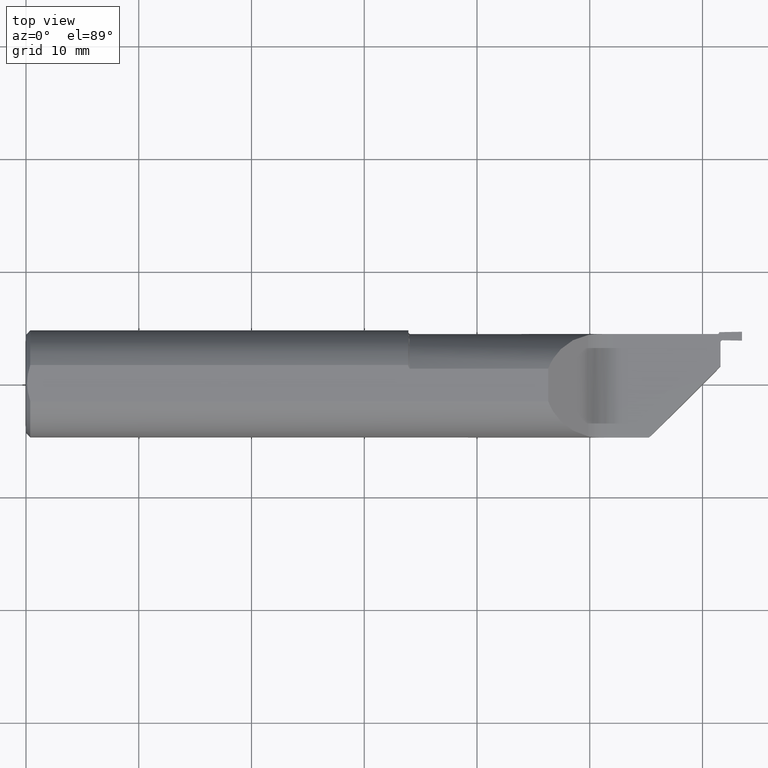
[diagram: clean part render]
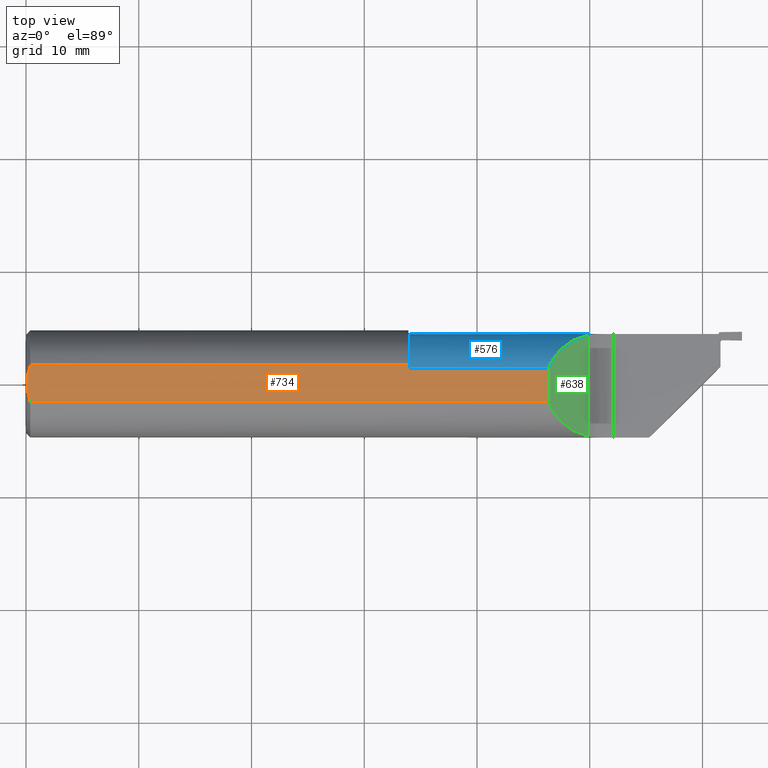
[diagram: same view with three faces highlighted in distinct colors, each labeled with its STEP entity id]
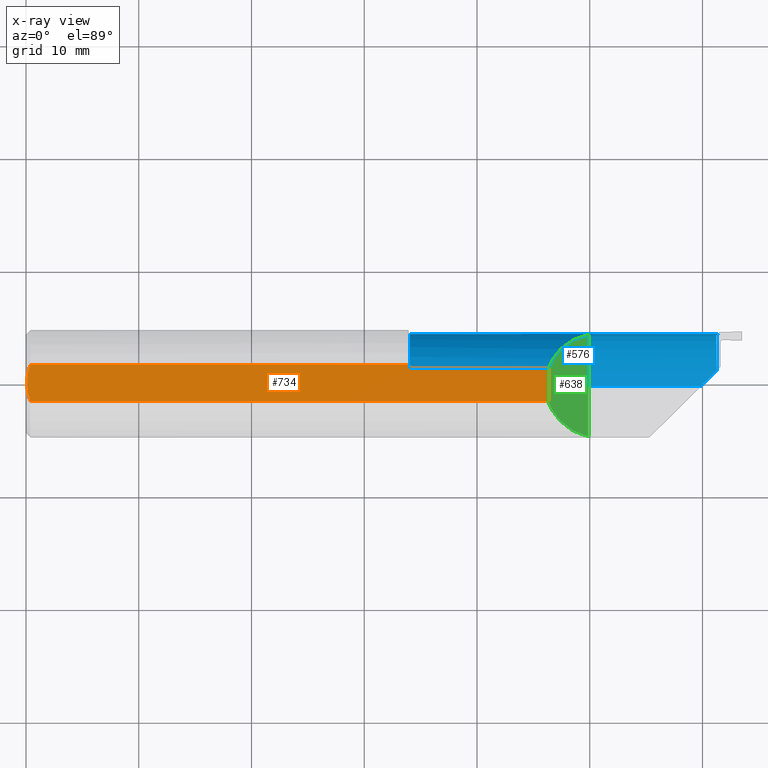
[diagram: x-ray of the same camera — body ghosted, the three highlighted faces saturated]
A machine part, top view with three faces highlighted in distinct colors.
The next image is the same camera in x-ray (body ghosted, the three faces saturated) — at least one of them is partly hidden behind the body in this view.
Their STEP definitions:

[orange] entity #734 — the highlighted planar face has unit normal (0, 0, -1).
#10 = ORIENTED_EDGE ( 'NONE', *, *, #573, .F. ) ;
#17 = CARTESIAN_POINT ( 'NONE',  ( 1.335009689054889037, 0.06325108694718309388, 0.1763499999999996737 ) ) ;
#36 = B_SPLINE_CURVE_WITH_KNOTS ( 'NONE', 3,
 ( #366, #651, #506, #864, #584, #303 ),
 .UNSPECIFIED., .F., .F.,
 ( 4, 2, 4 ),
 ( 0.005686795504019448270, 0.006495656790038640237, 0.007304518076057832203 ),
 .UNSPECIFIED. ) ;
#39 = VERTEX_POINT ( 'NONE', #486 ) ;
#59 = CARTESIAN_POINT ( 'NONE',  ( 1.336331159115146772, 0.05501236657328722329, 0.1763500000000000068 ) ) ;
#99 = VECTOR ( 'NONE', #434, 39.37007874015748143 ) ;
#103 = EDGE_LOOP ( 'NONE', ( #10, #384, #154, #801, #232, #850, #625 ) ) ;
#107 = VECTOR ( 'NONE', #718, 39.37007874015748143 ) ;
#115 = PLANE ( 'NONE',  #586 ) ;
#121 = VERTEX_POINT ( 'NONE', #254 ) ;
#154 = ORIENTED_EDGE ( 'NONE', *, *, #645, .F. ) ;
#173 = DIRECTION ( 'NONE',  ( -1.000000000000000000, -0.000000000000000000, -0.000000000000000000 ) ) ;
#175 = CARTESIAN_POINT ( 'NONE',  ( 1.339391378728019832, 0.05054325299224062679, 0.1763499999999999512 ) ) ;
#188 = CARTESIAN_POINT ( 'NONE',  ( 1.337621628564846787, 0.05225604298120335722, 0.1763500000000000068 ) ) ;
#219 = CARTESIAN_POINT ( 'NONE',  ( 0.9958286716179119979, 0.05054325299224011331, 0.1763499999999999790 ) ) ;
#220 = LINE ( 'NONE', #507, #99 ) ;
#232 = ORIENTED_EDGE ( 'NONE', *, *, #631, .T. ) ;
#233 = CARTESIAN_POINT ( 'NONE',  ( 0.01499999999999954321, -0.06325108694718213631, 0.1763499999999999790 ) ) ;
#247 = B_SPLINE_CURVE_WITH_KNOTS ( 'NONE', 3,
 ( #541, #386, #804, #524, #810, #814 ),
 .UNSPECIFIED., .F., .F.,
 ( 4, 2, 4 ),
 ( 0.004067309716740378708, 0.004877052610379913056, 0.005686795504019448270 ),
 .UNSPECIFIED. ) ;
#254 = CARTESIAN_POINT ( 'NONE',  ( 1.823649999999999771, -0.06325108694718213631, 0.1763499999999999790 ) ) ;
#295 = VERTEX_POINT ( 'NONE', #350 ) ;
#303 = CARTESIAN_POINT ( 'NONE',  ( 0.01499999999999954321, -0.06325108694718213631, 0.1763499999999999790 ) ) ;
#307 = CARTESIAN_POINT ( 'NONE',  ( 0.000000000000000000, -0.06325108694718213631, 0.1763499999999999790 ) ) ;
#319 = CARTESIAN_POINT ( 'NONE',  ( 1.335069243236268077, 0.06084819611239657144, 0.1763499999999999790 ) ) ;
#321 = DIRECTION ( 'NONE',  ( -1.000000000000000000, 0.000000000000000000, -0.000000000000000000 ) ) ;
#328 = CARTESIAN_POINT ( 'NONE',  ( 1.337958805214830571, 0.05174923270990745144, 0.1763499999999999235 ) ) ;
#350 = CARTESIAN_POINT ( 'NONE',  ( 0.003999999999999476197, 2.550090563692220756E-17, 0.1763499999999999790 ) ) ;
#366 = CARTESIAN_POINT ( 'NONE',  ( 0.003999999999999476197, 2.550090563692220756E-17, 0.1763499999999999790 ) ) ;
#367 = VERTEX_POINT ( 'NONE', #783 ) ;
#379 = CARTESIAN_POINT ( 'NONE',  ( 1.823649999999999771, 0.05054325299224022433, 0.1763499999999999790 ) ) ;
#384 = ORIENTED_EDGE ( 'NONE', *, *, #795, .F. ) ;
#386 = CARTESIAN_POINT ( 'NONE',  ( 0.01155164730757254551, 0.05303705098182932148, 0.1763499999999999512 ) ) ;
#434 = DIRECTION ( 'NONE',  ( -0.000000000000000000, 1.000000000000000000, 0.000000000000000000 ) ) ;
#439 = EDGE_CURVE ( 'NONE', #121, #585, #220, .T. ) ;
#453 = VECTOR ( 'NONE', #518, 39.37007874015748143 ) ;
#486 = CARTESIAN_POINT ( 'NONE',  ( 0.01499999999999953280, 0.06325108694718213631, 0.1763499999999999790 ) ) ;
#506 = CARTESIAN_POINT ( 'NONE',  ( 0.004994273251992765658, -0.02144446570098899538, 0.1763499999999999790 ) ) ;
#507 = CARTESIAN_POINT ( 'NONE',  ( 1.823649999999999771, 0.06325108694718213631, 0.1763499999999999790 ) ) ;
#518 = DIRECTION ( 'NONE',  ( 1.000000000000000000, 0.000000000000000000, 0.000000000000000000 ) ) ;
#524 = CARTESIAN_POINT ( 'NONE',  ( 0.005015444644058540853, 0.02160243875479328501, 0.1763499999999999790 ) ) ;
#527 = CARTESIAN_POINT ( 'NONE',  ( 1.336737058446424209, 0.05385394031618935540, 0.1763500000000000068 ) ) ;
#536 = CARTESIAN_POINT ( 'NONE',  ( 1.335371528663762408, 0.05848268389675807810, 0.1763499999999999790 ) ) ;
#541 = CARTESIAN_POINT ( 'NONE',  ( 0.01499999999999953280, 0.06325108694718213631, 0.1763499999999999790 ) ) ;
#542 = VECTOR ( 'NONE', #173, 39.37007874015748143 ) ;
#563 = VERTEX_POINT ( 'NONE', #17 ) ;
#573 = EDGE_CURVE ( 'NONE', #367, #585, #856, .T. ) ;
#584 = CARTESIAN_POINT ( 'NONE',  ( 0.01157250466904289656, -0.05309883057899357495, 0.1763500000000000068 ) ) ;
#585 = VERTEX_POINT ( 'NONE', #379 ) ;
#586 = AXIS2_PLACEMENT_3D ( 'NONE', #870, #881, #321 ) ;
#599 = CARTESIAN_POINT ( 'NONE',  ( 1.340000000000000080, 0.05054325299224017576, 0.1763500000000000068 ) ) ;
#625 = ORIENTED_EDGE ( 'NONE', *, *, #439, .T. ) ;
#631 = EDGE_CURVE ( 'NONE', #295, #871, #36, .T. ) ;
#645 = EDGE_CURVE ( 'NONE', #39, #563, #659, .T. ) ;
#651 = CARTESIAN_POINT ( 'NONE',  ( 0.003999999999999438033, -0.01077599264701408627, 0.1763499999999999512 ) ) ;
#659 = LINE ( 'NONE', #867, #453 ) ;
#665 = EDGE_CURVE ( 'NONE', #121, #871, #785, .T. ) ;
#667 = B_SPLINE_CURVE_WITH_KNOTS ( 'NONE', 3,
 ( #747, #319, #536, #59, #527, #188, #328, #672, #175, #599 ),
 .UNSPECIFIED., .F., .F.,
 ( 4, 2, 2, 2, 4 ),
 ( 0.001068967629214199935, 0.001252800944429019675, 0.001344717602036429437, 0.001390675930840129656, 0.001436634259643829875 ),
 .UNSPECIFIED. ) ;
#672 = CARTESIAN_POINT ( 'NONE',  ( 1.338826947156392722, 0.05089100678216058188, 0.1763500000000000068 ) ) ;
#678 = FACE_OUTER_BOUND ( 'NONE', #103, .T. ) ;
#718 = DIRECTION ( 'NONE',  ( 1.000000000000000000, 0.000000000000000000, 0.000000000000000000 ) ) ;
#734 = ADVANCED_FACE ( 'NONE', ( #678 ), #115, .F. ) ;
#747 = CARTESIAN_POINT ( 'NONE',  ( 1.335009689054889037, 0.06325108694718309388, 0.1763499999999996737 ) ) ;
#783 = CARTESIAN_POINT ( 'NONE',  ( 1.340000000000000080, 0.05054325299224017576, 0.1763500000000000068 ) ) ;
#785 = LINE ( 'NONE', #307, #542 ) ;
#788 = EDGE_CURVE ( 'NONE', #39, #295, #247, .T. ) ;
#795 = EDGE_CURVE ( 'NONE', #563, #367, #667, .T. ) ;
#801 = ORIENTED_EDGE ( 'NONE', *, *, #788, .T. ) ;
#804 = CARTESIAN_POINT ( 'NONE',  ( 0.008794551420594692165, 0.04267918597792702551, 0.1763499999999999790 ) ) ;
#810 = CARTESIAN_POINT ( 'NONE',  ( 0.003999999999999442370, 0.01078773779713888652, 0.1763500000000000068 ) ) ;
#814 = CARTESIAN_POINT ( 'NONE',  ( 0.003999999999999476197, 2.550090563692220756E-17, 0.1763499999999999790 ) ) ;
#850 = ORIENTED_EDGE ( 'NONE', *, *, #665, .F. ) ;
#856 = LINE ( 'NONE', #219, #107 ) ;
#864 = CARTESIAN_POINT ( 'NONE',  ( 0.008771136374093824184, -0.04258802525788810134, 0.1763499999999999790 ) ) ;
#867 = CARTESIAN_POINT ( 'NONE',  ( 0.000000000000000000, 0.06325108694718213631, 0.1763499999999999790 ) ) ;
#870 = CARTESIAN_POINT ( 'NONE',  ( 0.000000000000000000, -0.2873500000000001053, 0.1763499999999999790 ) ) ;
#871 = VERTEX_POINT ( 'NONE', #233 ) ;
#881 = DIRECTION ( 'NONE',  ( 0.000000000000000000, 0.000000000000000000, -1.000000000000000000 ) ) ;

[blue] entity #576 — the highlighted cylindrical surface (partial cylindrical patch) has radius 4.7625 mm, axis along (-1, -0, -0).
#11 = DIRECTION ( 'NONE',  ( -1.000000000000000000, -0.000000000000000000, -0.000000000000000000 ) ) ;
#12 = CARTESIAN_POINT ( 'NONE',  ( 2.043518208465806119, 0.1743492383597801676, 2.004200005117457956E-17 ) ) ;
#31 = CARTESIAN_POINT ( 'NONE',  ( 2.415000000000000480, -0.01315076164021992781, 0.000000000000000000 ) ) ;
#35 = DIRECTION ( 'NONE',  ( 0.000000000000000000, 0.000000000000000000, 1.000000000000000000 ) ) ;
#37 = AXIS2_PLACEMENT_3D ( 'NONE', #582, #794, #35 ) ;
#72 = CARTESIAN_POINT ( 'NONE',  ( 2.414115114763263126, 0.1718910382361288347, -0.03026445539806299143 ) ) ;
#75 = CARTESIAN_POINT ( 'NONE',  ( 2.410321013188299943, 0.1681737486601247444, -0.04788361220678832159 ) ) ;
#79 = VERTEX_POINT ( 'NONE', #399 ) ;
#80 = AXIS2_PLACEMENT_3D ( 'NONE', #31, #231, #578 ) ;
#81 = CARTESIAN_POINT ( 'NONE',  ( 2.376537322261709662, 0.01418732226170915482, -0.1864309973068664084 ) ) ;
#85 = DIRECTION ( 'NONE',  ( 1.000000000000000000, 0.000000000000000000, 0.000000000000000000 ) ) ;
#86 = VECTOR ( 'NONE', #11, 39.37007874015748143 ) ;
#93 = EDGE_CURVE ( 'NONE', #348, #493, #875, .T. ) ;
#102 = FACE_OUTER_BOUND ( 'NONE', #285, .T. ) ;
#107 = VECTOR ( 'NONE', #718, 39.37007874015748143 ) ;
#112 = CARTESIAN_POINT ( 'NONE',  ( 1.340000000000000080, -0.01315076164021992781, 0.000000000000000000 ) ) ;
#129 = CARTESIAN_POINT ( 'NONE',  ( 1.969175886172399359, 0.1718923342275688881, 0.03082411382760027324 ) ) ;
#130 = CARTESIAN_POINT ( 'NONE',  ( 2.413280096661680307, 0.1716893278446172122, -0.03147370469556214079 ) ) ;
#160 = ORIENTED_EDGE ( 'NONE', *, *, #270, .T. ) ;
#161 = CARTESIAN_POINT ( 'NONE',  ( 2.410635756131426000, 0.1501421375228592925, -0.1108388661426531474 ) ) ;
#172 = EDGE_CURVE ( 'NONE', #289, #214, #397, .T. ) ;
#181 = DIRECTION ( 'NONE',  ( -1.000000000000000000, -0.000000000000000000, -0.000000000000000000 ) ) ;
#191 = CARTESIAN_POINT ( 'NONE',  ( 2.410503924394359565, 0.1691269700428672806, -0.04411495659477527448 ) ) ;
#202 = CARTESIAN_POINT ( 'NONE',  ( 1.897454588124415586, 0.1576130183548815344, 0.1025454118755840666 ) ) ;
#204 = CARTESIAN_POINT ( 'NONE',  ( 2.357912423116064193, -0.004437576883935920487, -0.1872974383471407711 ) ) ;
#214 = VERTEX_POINT ( 'NONE', #405 ) ;
#215 = CARTESIAN_POINT ( 'NONE',  ( 2.011402846495882635, 0.1742657643842316917, 0.006416841385945333369 ) ) ;
#218 = CIRCLE ( 'NONE', #335, 0.1875000000000001110 ) ;
#219 = CARTESIAN_POINT ( 'NONE',  ( 0.9958286716179119979, 0.05054325299224011331, 0.1763499999999999790 ) ) ;
#222 = CARTESIAN_POINT ( 'NONE',  ( 2.410339731745216874, 0.1671013632505985169, -0.05162771999948106982 ) ) ;
#231 = DIRECTION ( 'NONE',  ( -1.000000000000000000, -0.000000000000000000, -0.000000000000000000 ) ) ;
#244 = EDGE_CURVE ( 'NONE', #435, #289, #569, .T. ) ;
#246 =( BOUNDED_CURVE ( )  B_SPLINE_CURVE ( 3, ( #222, #161, #293, #668 ),
 .UNSPECIFIED., .F., .T. ) 
 B_SPLINE_CURVE_WITH_KNOTS ( ( 4, 4 ),
 ( 0.2789515101749618919, 1.227087886097275371 ),
 .UNSPECIFIED. ) 
 CURVE ( )  GEOMETRIC_REPRESENTATION_ITEM ( )  RATIONAL_B_SPLINE_CURVE ( ( 1.000000000000000000, 0.9264789926384691121, 0.9264789926384691121, 1.000000000000000000 ) ) 
 REPRESENTATION_ITEM ( '' )  );
#259 = CARTESIAN_POINT ( 'NONE',  ( 2.411594056423522314, 0.1707683343821577715, -0.03651856916665762592 ) ) ;
#263 = CARTESIAN_POINT ( 'NONE',  ( 2.051776695296636976, 0.1743492383597801676, 0.000000000000000000 ) ) ;
#270 = EDGE_CURVE ( 'NONE', #79, #525, #326, .T. ) ;
#285 = EDGE_LOOP ( 'NONE', ( #716, #488, #160, #876, #322, #304, #416, #580, #372, #784 ) ) ;
#289 = VERTEX_POINT ( 'NONE', #622 ) ;
#293 = CARTESIAN_POINT ( 'NONE',  ( 2.411370952871655593, 0.1080227444840048262, -0.1557780683486446049 ) ) ;
#304 = ORIENTED_EDGE ( 'NONE', *, *, #93, .T. ) ;
#322 = ORIENTED_EDGE ( 'NONE', *, *, #633, .T. ) ;
#326 = B_SPLINE_CURVE_WITH_KNOTS ( 'NONE', 3,
 ( #477, #129, #490, #772, #755, #215, #901, #689, #12, #263 ),
 .UNSPECIFIED., .F., .F.,
 ( 4, 2, 2, 2, 4 ),
 ( 0.000000000000000000, 0.0006203411018093670914, 0.001240682203618734183, 0.001861023305428101274, 0.002481364407237468366 ),
 .UNSPECIFIED. ) ;
#335 = AXIS2_PLACEMENT_3D ( 'NONE', #112, #181, #465 ) ;
#348 = VERTEX_POINT ( 'NONE', #624 ) ;
#357 =( BOUNDED_CURVE ( )  B_SPLINE_CURVE ( 3, ( #845, #202, #769, #415 ),
 .UNSPECIFIED., .F., .T. ) 
 B_SPLINE_CURVE_WITH_KNOTS ( ( 4, 4 ),
 ( 4.908913714375442439, 5.936585895212763475 ),
 .UNSPECIFIED. ) 
 CURVE ( )  GEOMETRIC_REPRESENTATION_ITEM ( )  RATIONAL_B_SPLINE_CURVE ( ( 1.000000000000000000, 0.9139102658081095232, 0.9139102658081095232, 1.000000000000000000 ) ) 
 REPRESENTATION_ITEM ( '' )  );
#367 = VERTEX_POINT ( 'NONE', #783 ) ;
#369 = VECTOR ( 'NONE', #85, 39.37007874015748143 ) ;
#372 = ORIENTED_EDGE ( 'NONE', *, *, #172, .T. ) ;
#379 = CARTESIAN_POINT ( 'NONE',  ( 1.823649999999999771, 0.05054325299224022433, 0.1763499999999999790 ) ) ;
#392 = CARTESIAN_POINT ( 'NONE',  ( 2.410339731745216874, 0.1671013632505985169, -0.05162771999948106982 ) ) ;
#397 = LINE ( 'NONE', #626, #86 ) ;
#399 = CARTESIAN_POINT ( 'NONE',  ( 1.963388347648318710, 0.1707400671470789000, 0.03661165235168143545 ) ) ;
#403 = EDGE_CURVE ( 'NONE', #79, #585, #357, .T. ) ;
#405 = CARTESIAN_POINT ( 'NONE',  ( 1.340000000000000080, -0.004437576883793904747, -0.1872974383471392446 ) ) ;
#414 = CARTESIAN_POINT ( 'NONE',  ( 2.415000000000051550, 0.1719648977071854545, -0.02980675534799778759 ) ) ;
#415 = CARTESIAN_POINT ( 'NONE',  ( 1.823649999999999771, 0.05054325299224022433, 0.1763499999999999790 ) ) ;
#416 = ORIENTED_EDGE ( 'NONE', *, *, #702, .T. ) ;
#423 = CARTESIAN_POINT ( 'NONE',  ( 2.394828643948621494, 0.03247864394862154391, -0.1828164241359915843 ) ) ;
#435 = VERTEX_POINT ( 'NONE', #487 ) ;
#446 = VERTEX_POINT ( 'NONE', #715 ) ;
#465 = DIRECTION ( 'NONE',  ( 0.000000000000000000, 0.000000000000000000, 1.000000000000000000 ) ) ;
#477 = CARTESIAN_POINT ( 'NONE',  ( 1.963388347648318710, 0.1707400671470789000, 0.03661165235168143545 ) ) ;
#479 = EDGE_CURVE ( 'NONE', #525, #446, #777, .T. ) ;
#487 = CARTESIAN_POINT ( 'NONE',  ( 2.412383164751053855, 0.05003316475105366173, -0.1765334003688314723 ) ) ;
#488 = ORIENTED_EDGE ( 'NONE', *, *, #403, .F. ) ;
#490 = CARTESIAN_POINT ( 'NONE',  ( 1.975456747076115072, 0.1726394736848242961, 0.02567045653326194277 ) ) ;
#491 = CARTESIAN_POINT ( 'NONE',  ( 2.410339731745216874, 0.1671013632505985169, -0.05162771999948106982 ) ) ;
#493 = VERTEX_POINT ( 'NONE', #491 ) ;
#525 = VERTEX_POINT ( 'NONE', #767 ) ;
#557 = CARTESIAN_POINT ( 'NONE',  ( 2.412383164751053855, 0.05003316475105366173, -0.1765334003688314723 ) ) ;
#569 =( BOUNDED_CURVE ( )  B_SPLINE_CURVE ( 3, ( #557, #423, #81, #204 ),
 .UNSPECIFIED., .F., .T. ) 
 B_SPLINE_CURVE_WITH_KNOTS ( ( 4, 4 ),
 ( 4.368680539687068709, 4.665901920041577000 ),
 .UNSPECIFIED. ) 
 CURVE ( )  GEOMETRIC_REPRESENTATION_ITEM ( )  RATIONAL_B_SPLINE_CURVE ( ( 1.000000000000000000, 0.9926518263205222903, 0.9926518263205222903, 1.000000000000000000 ) ) 
 REPRESENTATION_ITEM ( '' )  );
#573 = EDGE_CURVE ( 'NONE', #367, #585, #856, .T. ) ;
#576 = ADVANCED_FACE ( 'NONE', ( #102 ), #726, .T. ) ;
#578 = DIRECTION ( 'NONE',  ( 0.000000000000000000, 0.000000000000000000, 1.000000000000000000 ) ) ;
#580 = ORIENTED_EDGE ( 'NONE', *, *, #244, .T. ) ;
#582 = CARTESIAN_POINT ( 'NONE',  ( 0.9958286716179119979, -0.01315076164021992781, 0.000000000000000000 ) ) ;
#585 = VERTEX_POINT ( 'NONE', #379 ) ;
#606 = CARTESIAN_POINT ( 'NONE',  ( 2.413515199128399846, 0.1717623284192255351, -0.03104116761153544179 ) ) ;
#622 = CARTESIAN_POINT ( 'NONE',  ( 2.357912423116064193, -0.004437576883935920487, -0.1872974383471407711 ) ) ;
#624 = CARTESIAN_POINT ( 'NONE',  ( 2.415000000000051550, 0.1719648977071854545, -0.02980675534799778759 ) ) ;
#626 = CARTESIAN_POINT ( 'NONE',  ( 1.877500000000000391, -0.004437576883793733010, -0.1872974383471392168 ) ) ;
#629 = CARTESIAN_POINT ( 'NONE',  ( 0.9958286716179119979, 0.1743492383597801398, 0.000000000000000000 ) ) ;
#633 = EDGE_CURVE ( 'NONE', #446, #348, #778, .T. ) ;
#668 = CARTESIAN_POINT ( 'NONE',  ( 2.412383164751053855, 0.05003316475105366173, -0.1765334003688314723 ) ) ;
#689 = CARTESIAN_POINT ( 'NONE',  ( 2.035252298051418052, 0.1743543119172813738, 0.0008268482096370587250 ) ) ;
#696 = CARTESIAN_POINT ( 'NONE',  ( 2.414500622827749243, 0.1719521561252486397, -0.02988588728684299367 ) ) ;
#699 = CARTESIAN_POINT ( 'NONE',  ( 2.411262013755092415, 0.1703785482849685118, -0.03843182423599932757 ) ) ;
#702 = EDGE_CURVE ( 'NONE', #493, #435, #246, .T. ) ;
#715 = CARTESIAN_POINT ( 'NONE',  ( 2.415000000000000480, 0.1743492383597801398, 0.000000000000000000 ) ) ;
#716 = ORIENTED_EDGE ( 'NONE', *, *, #573, .T. ) ;
#718 = DIRECTION ( 'NONE',  ( 1.000000000000000000, 0.000000000000000000, 0.000000000000000000 ) ) ;
#726 = CYLINDRICAL_SURFACE ( 'NONE', #37, 0.1875000000000000833 ) ;
#755 = CARTESIAN_POINT ( 'NONE',  ( 1.996282164411133930, 0.1739453693091476960, 0.01269519059421281640 ) ) ;
#758 = CARTESIAN_POINT ( 'NONE',  ( 2.412361256172204538, 0.1712936362000551938, -0.03372553260150936566 ) ) ;
#767 = CARTESIAN_POINT ( 'NONE',  ( 2.051776695296636976, 0.1743492383597801676, 0.000000000000000000 ) ) ;
#769 = CARTESIAN_POINT ( 'NONE',  ( 1.846487386027261479, 0.1137732605392143687, 0.1535126139727386041 ) ) ;
#772 = CARTESIAN_POINT ( 'NONE',  ( 1.988965638552542048, 0.1736665399885003458, 0.01662166336216467158 ) ) ;
#777 = LINE ( 'NONE', #629, #369 ) ;
#778 = CIRCLE ( 'NONE', #80, 0.1875000000000000555 ) ;
#783 = CARTESIAN_POINT ( 'NONE',  ( 1.340000000000000080, 0.05054325299224017576, 0.1763500000000000068 ) ) ;
#784 = ORIENTED_EDGE ( 'NONE', *, *, #793, .F. ) ;
#793 = EDGE_CURVE ( 'NONE', #367, #214, #218, .T. ) ;
#794 = DIRECTION ( 'NONE',  ( -1.000000000000000000, -0.000000000000000000, -0.000000000000000000 ) ) ;
#818 = CARTESIAN_POINT ( 'NONE',  ( 2.412657505486970777, 0.1714593703131006286, -0.03280488153128662682 ) ) ;
#845 = CARTESIAN_POINT ( 'NONE',  ( 1.963388347648318710, 0.1707400671470789000, 0.03661165235168143545 ) ) ;
#856 = LINE ( 'NONE', #219, #107 ) ;
#875 = B_SPLINE_CURVE_WITH_KNOTS ( 'NONE', 3,
 ( #414, #696, #72, #606, #130, #818, #758, #259, #699, #191, #75, #392 ),
 .UNSPECIFIED., .F., .F.,
 ( 4, 2, 2, 2, 2, 4 ),
 ( 1.991033970308531655E-07, 3.812681620050097856E-05, 7.605452900397109478E-05, 0.0001519099546109205158, 0.0003036208058248135032, 0.0006070425082525967133 ),
 .UNSPECIFIED. ) ;
#876 = ORIENTED_EDGE ( 'NONE', *, *, #479, .T. ) ;
#901 = CARTESIAN_POINT ( 'NONE',  ( 2.019197208109889896, 0.1743125433629941212, 0.004042964882075219743 ) ) ;

[green] entity #638 — the highlighted planar face has unit normal (0.7071, -0, 0.7071).
#57 = CARTESIAN_POINT ( 'NONE',  ( 1.897364539052141197, -0.1705819631923700119, 0.1026354609478592056 ) ) ;
#79 = VERTEX_POINT ( 'NONE', #399 ) ;
#99 = VECTOR ( 'NONE', #434, 39.37007874015748143 ) ;
#106 = FACE_OUTER_BOUND ( 'NONE', #291, .T. ) ;
#121 = VERTEX_POINT ( 'NONE', #254 ) ;
#178 = EDGE_CURVE ( 'NONE', #380, #121, #448, .T. ) ;
#202 = CARTESIAN_POINT ( 'NONE',  ( 1.897454588124415586, 0.1576130183548815344, 0.1025454118755840666 ) ) ;
#220 = LINE ( 'NONE', #507, #99 ) ;
#254 = CARTESIAN_POINT ( 'NONE',  ( 1.823649999999999771, -0.06325108694718213631, 0.1763499999999999790 ) ) ;
#291 = EDGE_LOOP ( 'NONE', ( #811, #749, #481, #898 ) ) ;
#344 = CARTESIAN_POINT ( 'NONE',  ( 1.846378452100291501, -0.1266201564974553662, 0.1536215478997087214 ) ) ;
#357 =( BOUNDED_CURVE ( )  B_SPLINE_CURVE ( 3, ( #845, #202, #769, #415 ),
 .UNSPECIFIED., .F., .T. ) 
 B_SPLINE_CURVE_WITH_KNOTS ( ( 4, 4 ),
 ( 4.908913714375442439, 5.936585895212763475 ),
 .UNSPECIFIED. ) 
 CURVE ( )  GEOMETRIC_REPRESENTATION_ITEM ( )  RATIONAL_B_SPLINE_CURVE ( ( 1.000000000000000000, 0.9139102658081095232, 0.9139102658081095232, 1.000000000000000000 ) ) 
 REPRESENTATION_ITEM ( '' )  );
#379 = CARTESIAN_POINT ( 'NONE',  ( 1.823649999999999771, 0.05054325299224022433, 0.1763499999999999790 ) ) ;
#380 = VERTEX_POINT ( 'NONE', #553 ) ;
#383 = CARTESIAN_POINT ( 'NONE',  ( 1.963388347648318932, 0.2873499999999999943, 0.03661165235168144932 ) ) ;
#399 = CARTESIAN_POINT ( 'NONE',  ( 1.963388347648318710, 0.1707400671470789000, 0.03661165235168143545 ) ) ;
#403 = EDGE_CURVE ( 'NONE', #79, #585, #357, .T. ) ;
#415 = CARTESIAN_POINT ( 'NONE',  ( 1.823649999999999771, 0.05054325299224022433, 0.1763499999999999790 ) ) ;
#434 = DIRECTION ( 'NONE',  ( -0.000000000000000000, 1.000000000000000000, 0.000000000000000000 ) ) ;
#437 = PLANE ( 'NONE',  #890 ) ;
#439 = EDGE_CURVE ( 'NONE', #121, #585, #220, .T. ) ;
#448 =( BOUNDED_CURVE ( )  B_SPLINE_CURVE ( 3, ( #822, #57, #344, #621 ),
 .UNSPECIFIED., .F., .T. ) 
 B_SPLINE_CURVE_WITH_KNOTS ( ( 4, 4 ),
 ( 4.909073120026993919, 5.938809479923476076 ),
 .UNSPECIFIED. ) 
 CURVE ( )  GEOMETRIC_REPRESENTATION_ITEM ( )  RATIONAL_B_SPLINE_CURVE ( ( 1.000000000000000000, 0.9135717604705588801, 0.9135717604705588801, 1.000000000000000000 ) ) 
 REPRESENTATION_ITEM ( '' )  );
#472 = EDGE_CURVE ( 'NONE', #380, #79, #547, .T. ) ;
#481 = ORIENTED_EDGE ( 'NONE', *, *, #439, .F. ) ;
#507 = CARTESIAN_POINT ( 'NONE',  ( 1.823649999999999771, 0.06325108694718213631, 0.1763499999999999790 ) ) ;
#515 = DIRECTION ( 'NONE',  ( 0.7071067811865459074, -0.000000000000000000, 0.7071067811865492381 ) ) ;
#547 = LINE ( 'NONE', #383, #650 ) ;
#553 = CARTESIAN_POINT ( 'NONE',  ( 1.963388347648318932, -0.1837378823544007778, 0.03661165235168152565 ) ) ;
#585 = VERTEX_POINT ( 'NONE', #379 ) ;
#621 = CARTESIAN_POINT ( 'NONE',  ( 1.823649999999999771, -0.06325108694718213631, 0.1763499999999999790 ) ) ;
#638 = ADVANCED_FACE ( 'NONE', ( #106 ), #437, .T. ) ;
#650 = VECTOR ( 'NONE', #663, 39.37007874015748143 ) ;
#663 = DIRECTION ( 'NONE',  ( 0.000000000000000000, 1.000000000000000000, 0.000000000000000000 ) ) ;
#714 = CARTESIAN_POINT ( 'NONE',  ( 2.000000000000000000, 0.2873499999999999943, 6.488138984952624897E-16 ) ) ;
#728 = DIRECTION ( 'NONE',  ( 0.7071067811865492381, 0.000000000000000000, -0.7071067811865459074 ) ) ;
#749 = ORIENTED_EDGE ( 'NONE', *, *, #403, .T. ) ;
#769 = CARTESIAN_POINT ( 'NONE',  ( 1.846487386027261479, 0.1137732605392143687, 0.1535126139727386041 ) ) ;
#811 = ORIENTED_EDGE ( 'NONE', *, *, #472, .T. ) ;
#822 = CARTESIAN_POINT ( 'NONE',  ( 1.963388347648318932, -0.1837378823544007778, 0.03661165235168152565 ) ) ;
#845 = CARTESIAN_POINT ( 'NONE',  ( 1.963388347648318710, 0.1707400671470789000, 0.03661165235168143545 ) ) ;
#890 = AXIS2_PLACEMENT_3D ( 'NONE', #714, #515, #728 ) ;
#898 = ORIENTED_EDGE ( 'NONE', *, *, #178, .F. ) ;